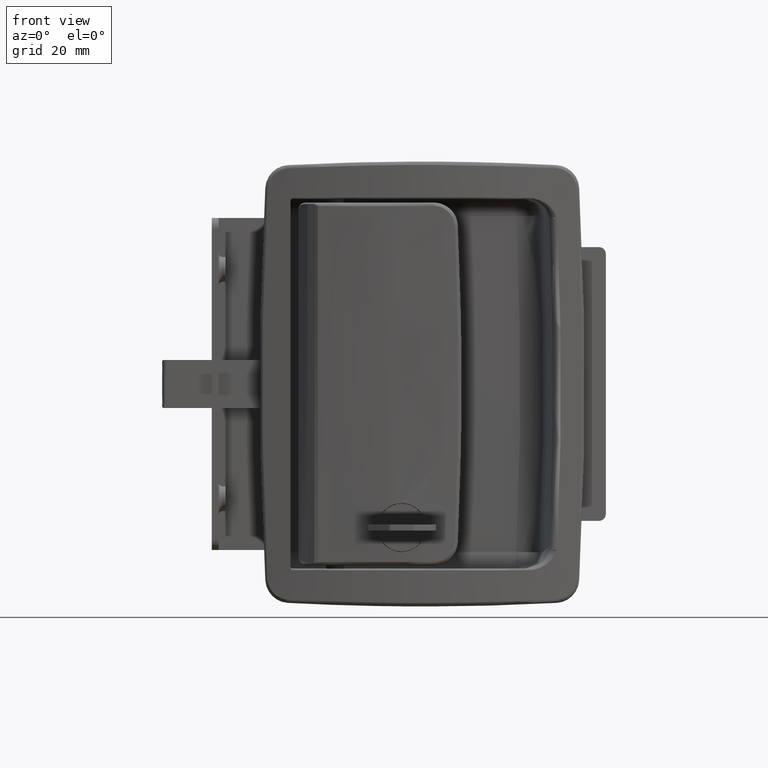
[diagram: clean part render]
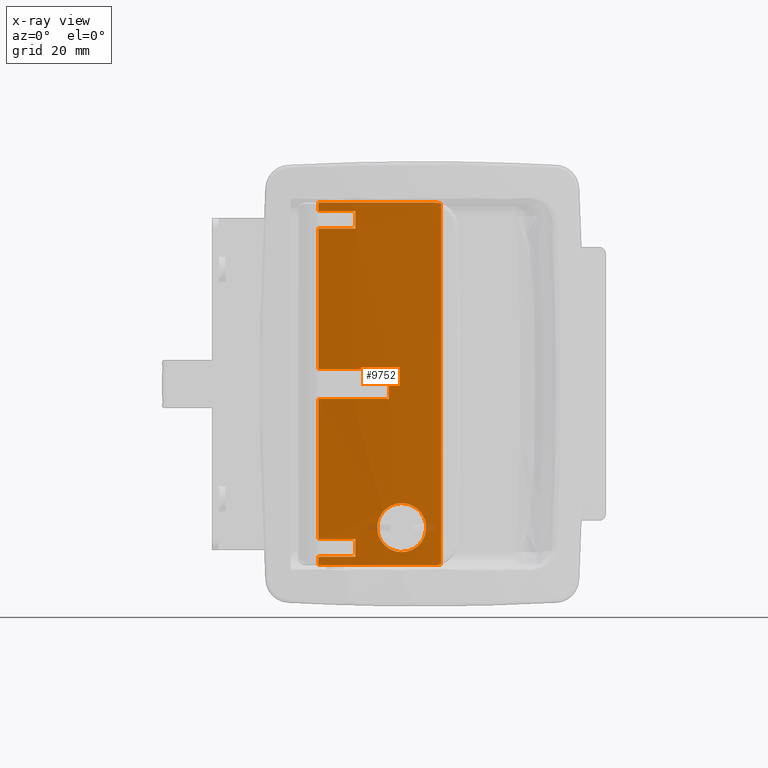
[diagram: x-ray — body ghosted, one internal face saturated and labeled with its STEP entity id]
A machine part, front view, then the same camera in x-ray: the body is ghosted and one INTERNAL B-rep face — a face not visible from any outside direction — is saturated and labeled: STEP entity #9752.
In plain terms, the highlighted face is a freeform B-spline surface patch.
Its self-contained STEP definition (entity closure, byte-faithful):
#5602=CARTESIAN_POINT('',(34.363305564624518,-7.742227874183371,-41.563501074085863));
#5603=VERTEX_POINT('',#5602);
#5609=CARTESIAN_POINT('',(41.496781547425570,-8.104494505288105,-34.850000724450410));
#5610=VERTEX_POINT('',#5609);
#5611=CARTESIAN_POINT('',(41.496781547425570,-8.104494505288105,-34.850000724450410));
#5612=CARTESIAN_POINT('',(41.030293219278178,-8.089647942778354,-34.850210771689653));
#5613=CARTESIAN_POINT('',(40.566688139763009,-8.073160818545130,-34.895633601574900));
#5614=CARTESIAN_POINT('',(39.990856102584623,-8.050582631657575,-35.010096028658552));
#5615=CARTESIAN_POINT('',(39.875558489012150,-8.045955448989009,-35.035982525879867));
#5616=CARTESIAN_POINT('',(39.647117206708742,-8.036580097952816,-35.093251836682569));
#5617=CARTESIAN_POINT('',(39.534043458540062,-8.031835556417176,-35.124596046715062));
#5618=CARTESIAN_POINT('',(39.198196493384003,-8.017446903958390,-35.226601818753977));
#5619=CARTESIAN_POINT('',(38.759382590460959,-7.997848389074263,-35.383833247723537));
#5620=CARTESIAN_POINT('',(38.338230920623552,-7.977594634898024,-35.582816223285512));
#5621=CARTESIAN_POINT('',(38.029068858565161,-7.962229188744741,-35.747903572609438));
#5622=CARTESIAN_POINT('',(37.927133760828617,-7.957078258494235,-35.805579059093560));
#5623=CARTESIAN_POINT('',(37.725539362961868,-7.946731056844914,-35.926314055666573));
#5624=CARTESIAN_POINT('',(37.625628344963417,-7.941521231457459,-35.989552086616392));
#5625=CARTESIAN_POINT('',(37.136619546801462,-7.915645303959328,-36.316281731899601));
#5626=CARTESIAN_POINT('',(36.776647447622331,-7.895385123223160,-36.612106543192120));
#5627=CARTESIAN_POINT('',(36.282170500862939,-7.866374623149135,-37.106039799152313));
#5628=CARTESIAN_POINT('',(36.124979973349987,-7.856935632877714,-37.279110810456089));
#5629=CARTESIAN_POINT('',(35.900980313267922,-7.843231292468315,-37.551731339513132));
#5630=CARTESIAN_POINT('',(35.828169260130217,-7.838731824144082,-37.644953339405383));
#5631=CARTESIAN_POINT('',(35.688066219454349,-7.829997875631098,-37.833765795220550));
#5632=CARTESIAN_POINT('',(35.620586587190019,-7.825752066980921,-37.929568231328233));
#5633=CARTESIAN_POINT('',(35.295827234045923,-7.805156222118368,-38.415443001567802));
#5634=CARTESIAN_POINT('',(35.076103092362239,-7.790694486179654,-38.825907411672851));
#5635=CARTESIAN_POINT('',(34.851727869518427,-7.775676303185949,-39.366307743459572));
#5636=CARTESIAN_POINT('',(34.809389426273050,-7.772826375830888,-39.475766060968724));
#5637=CARTESIAN_POINT('',(34.729883676682611,-7.767450932429752,-39.697492798111099));
#5638=CARTESIAN_POINT('',(34.692729257662833,-7.764926225760157,-39.809791378550642));
#5639=CARTESIAN_POINT('',(34.590276116636161,-7.757938574345715,-40.147142449235787));
#5640=CARTESIAN_POINT('',(34.533494525477579,-7.754029663676185,-40.373893455051572));
#5641=CARTESIAN_POINT('',(34.424787421353699,-7.746516455639039,-40.919327780962838));
#5642=CARTESIAN_POINT('',(34.383061132522272,-7.743608271940401,-41.239649542620661));
#5643=CARTESIAN_POINT('',(34.363305564624518,-7.742227874183371,-41.563501074085863));
#5644=B_SPLINE_CURVE_WITH_KNOTS('',3,(#5611,#5612,#5613,#5614,#5615,#5616,#5617,#5618,#5619,#5620,#5621,#5622,#5623,#5624,#5625,#5626,#5627,#5628,#5629,#5630,#5631,#5632,#5633,#5634,#5635,#5636,#5637,#5638,#5639,#5640,#5641,#5642,#5643),.UNSPECIFIED.,.F.,.U.,(4,2,2,2,1,2,2,2,2,2,2,2,2,2,2,2,4),(0.500000000000017,0.531250000000014,0.539062500000014,0.546875000000013,0.562500000000012,0.578125000000011,0.585937500000010,0.593750000000010,0.625000000000007,0.640625000000006,0.648437500000006,0.656250000000006,0.687500000000006,0.695312500000006,0.703125000000006,0.718750000000007,0.740413241313527),.UNSPECIFIED.);
#5645=EDGE_CURVE('',#5610,#5603,#5644,.T.);
#5647=CARTESIAN_POINT('',(41.500000000106169,-8.104596908769048,-49.150000000084098));
#5648=VERTEX_POINT('',#5647);
#5649=CARTESIAN_POINT('',(41.500000000106169,-8.104596908769048,-49.150000000084098));
#5650=CARTESIAN_POINT('',(41.972285367783542,-8.119619868310009,-49.150000000084098));
#5651=CARTESIAN_POINT('',(42.436736262924207,-8.132619333420191,-49.103664906074911));
#5652=CARTESIAN_POINT('',(43.122130037579467,-8.149353542600007,-48.967456610799232));
#5653=CARTESIAN_POINT('',(43.348700175551350,-8.154470097638825,-48.910853726799559));
#5654=CARTESIAN_POINT('',(43.685646800936681,-8.161482382640624,-48.808760603505760));
#5655=CARTESIAN_POINT('',(43.797673199955021,-8.163713080747446,-48.771788427993933));
#5656=CARTESIAN_POINT('',(44.019850838065693,-8.167941746249177,-48.692292014044021));
#5657=CARTESIAN_POINT('',(44.129508287786727,-8.169930728606621,-48.649956292968142));
#5658=CARTESIAN_POINT('',(44.670782965942607,-8.179288625147487,-48.425601598342311));
#5659=CARTESIAN_POINT('',(45.081562162551471,-8.184903771305413,-48.205915069090551));
#5660=CARTESIAN_POINT('',(45.567467032404572,-8.190130035507087,-47.881485040158132));
#5661=CARTESIAN_POINT('',(45.663257138839462,-8.191085255371727,-47.814085521964223));
#5662=CARTESIAN_POINT('',(45.852010692446044,-8.192827997824622,-47.674178653661102));
#5663=CARTESIAN_POINT('',(45.945216784581461,-8.193617321792717,-47.601467988679282));
#5664=CARTESIAN_POINT('',(46.218568969134751,-8.195737428389544,-47.377098700821278));
#5665=CARTESIAN_POINT('',(46.392013586295107,-8.196819529009748,-47.219686719667713));
#5666=CARTESIAN_POINT('',(46.886795810392726,-8.199292041720582,-46.724683736642142));
#5667=CARTESIAN_POINT('',(47.182823960164690,-8.199914474507629,-46.364541468680692));
#5668=CARTESIAN_POINT('',(47.509549538683679,-8.200011071387181,-45.875776050488788));
#5669=CARTESIAN_POINT('',(47.572868837619858,-8.199995637792668,-45.775795632860017));
#5670=CARTESIAN_POINT('',(47.693920471352307,-8.199910074135639,-45.573754017082543));
#5671=CARTESIAN_POINT('',(47.751727352729752,-8.199840170047409,-45.471613966494068));
#5672=CARTESIAN_POINT('',(47.917140858344823,-8.199571202851917,-45.161897673757402));
#5673=CARTESIAN_POINT('',(48.116377733224212,-8.199056024815837,-44.740168509150159));
#5674=CARTESIAN_POINT('',(48.273621230173063,-8.198426588179109,-44.301152535941803));
#5675=CARTESIAN_POINT('',(48.375588096935083,-8.197971863180703,-43.965318094736737));
#5676=CARTESIAN_POINT('',(48.406911374773003,-8.197823042575891,-43.852275928560530));
#5677=CARTESIAN_POINT('',(48.464130488103542,-8.197539394316920,-43.623957326758820));
#5678=CARTESIAN_POINT('',(48.490057614778763,-8.197404379497234,-43.508455170337207));
#5679=CARTESIAN_POINT('',(48.604671989591843,-8.196789164972055,-42.931458660197237));
#5680=CARTESIAN_POINT('',(48.649940225651463,-8.196496479074945,-42.467390262209399));
#5681=CARTESIAN_POINT('',(48.650029799453549,-8.196495933232832,-41.767677831652151));
#5682=CARTESIAN_POINT('',(48.638676199353810,-8.196566191925653,-41.533834387518120));
#5683=CARTESIAN_POINT('',(48.604045999808108,-8.196770905723176,-41.182132346896822));
#5684=CARTESIAN_POINT('',(48.589538184583581,-8.196855661307813,-41.064710642669482));
#5685=CARTESIAN_POINT('',(48.554961889046091,-8.197052115678341,-40.832168421104733));
#5686=CARTESIAN_POINT('',(48.534866814054944,-8.197163972498283,-40.716717204946789));
#5687=CARTESIAN_POINT('',(48.420587787909099,-8.197776799885478,-40.143493111327828));
#5688=CARTESIAN_POINT('',(48.285386883199763,-8.198450875617622,-39.697701126266239));
#5689=CARTESIAN_POINT('',(48.061324528692182,-8.199170526866318,-39.156543892777570));
#5690=CARTESIAN_POINT('',(48.013734272978773,-8.199307493478258,-39.049123804056620));
#5691=CARTESIAN_POINT('',(47.912887108261792,-8.199555074571006,-38.835938774392012));
#5692=CARTESIAN_POINT('',(47.859725080148479,-8.199665293794160,-38.730414199785400));
#5693=CARTESIAN_POINT('',(47.693498123167998,-8.199933338412766,-38.419740428968701));
#5694=CARTESIAN_POINT('',(47.573212560217328,-8.200030250131242,-38.219405868329737));
#5695=CARTESIAN_POINT('',(47.184625975538466,-8.199914291757512,-37.638264258796113));
#5696=CARTESIAN_POINT('',(46.888866327879342,-8.199305907603693,-37.277124972621387));
#5697=CARTESIAN_POINT('',(46.471466171143071,-8.197215674410483,-36.859867982157581));
#5698=CARTESIAN_POINT('',(46.386031250984750,-8.196732292044120,-36.778604549275592));
#5699=CARTESIAN_POINT('',(46.212047339319987,-8.195625090105736,-36.621070579530802));
#5700=CARTESIAN_POINT('',(46.123384448482931,-8.195000713335901,-36.544685750168412));
#5701=CARTESIAN_POINT('',(45.852456388078437,-8.192894728958992,-36.322573410325369));
#5702=CARTESIAN_POINT('',(45.478070512880912,-8.189466489278065,-36.045169558751162));
#5703=CARTESIAN_POINT('',(45.077591107088637,-8.184565862642213,-35.804971155921727));
#5704=CARTESIAN_POINT('',(44.767238912700719,-8.180241531121769,-35.639071607528557));
#5705=CARTESIAN_POINT('',(44.662060561947577,-8.178690870203758,-35.586123068924678));
#5706=CARTESIAN_POINT('',(44.448536880333002,-8.175358752579795,-35.485203414560182));
#5707=CARTESIAN_POINT('',(44.340972978712550,-8.173589544814625,-35.437597995795429));
#5708=CARTESIAN_POINT('',(43.799228322830167,-8.164208763788558,-35.213542189340920));
#5709=CARTESIAN_POINT('',(43.353384100383018,-8.154995871051302,-35.078608045638859));
#5710=CARTESIAN_POINT('',(42.780711740523863,-8.141018608985640,-34.964666682564939));
#5711=CARTESIAN_POINT('',(42.665401970392161,-8.138099886533697,-34.944639386314442));
#5712=CARTESIAN_POINT('',(42.433208403775559,-8.132006678911562,-34.910190607864898));
#5713=CARTESIAN_POINT('',(42.316077770373788,-8.128825210390756,-34.895746110797909));
#5714=CARTESIAN_POINT('',(41.963996747472187,-8.118931136708726,-34.861174324898712));
#5715=CARTESIAN_POINT('',(41.730026242903961,-8.111917786542827,-34.849895733248779));
#5716=CARTESIAN_POINT('',(41.496781547425570,-8.104494505288105,-34.850000724450410));
#5717=B_SPLINE_CURVE_WITH_KNOTS('',3,(#5649,#5650,#5651,#5652,#5653,#5654,#5655,#5656,#5657,#5658,#5659,#5660,#5661,#5662,#5663,#5664,#5665,#5666,#5667,#5668,#5669,#5670,#5671,#5672,#5673,#5674,#5675,#5676,#5677,#5678,#5679,#5680,#5681,#5682,#5683,#5684,#5685,#5686,#5687,#5688,#5689,#5690,#5691,#5692,#5693,#5694,#5695,#5696,#5697,#5698,#5699,#5700,#5701,#5702,#5703,#5704,#5705,#5706,#5707,#5708,#5709,#5710,#5711,#5712,#5713,#5714,#5715,#5716),.UNSPECIFIED.,.F.,.U.,(4,2,2,2,2,2,2,2,2,2,2,2,1,2,2,2,2,2,2,2,2,2,2,2,2,2,2,1,2,2,2,2,2,2,4),(0.0,0.031250000000003,0.046875000000005,0.054687500000006,0.062500000000006,0.093750000000009,0.101562500000010,0.109375000000011,0.125000000000011,0.156250000000013,0.164062500000014,0.171875000000014,0.187500000000015,0.203125000000016,0.210937500000017,0.218750000000017,0.250000000000018,0.265625000000019,0.273437500000019,0.281250000000019,0.312500000000020,0.320312500000020,0.328125000000021,0.343750000000021,0.375000000000022,0.382812500000022,0.390625000000022,0.406250000000022,0.421875000000021,0.429687500000021,0.437500000000020,0.468750000000019,0.476562500000018,0.484375000000018,0.500000000000017),.UNSPECIFIED.);
#5718=EDGE_CURVE('',#5648,#5610,#5717,.T.);
#5720=CARTESIAN_POINT('',(35.438335990802408,-7.814158619527541,-45.791949545203387));
#5721=VERTEX_POINT('',#5720);
#5722=CARTESIAN_POINT('',(35.438335990802408,-7.814158619527541,-45.791949545203387));
#5723=CARTESIAN_POINT('',(35.475220486050752,-7.816520529493137,-45.850889804578948));
#5724=CARTESIAN_POINT('',(35.512985684934833,-7.818928026505351,-45.909329983408981));
#5725=CARTESIAN_POINT('',(35.616383300940143,-7.825487557031019,-46.064360771128307));
#5726=CARTESIAN_POINT('',(35.683626564665687,-7.829719993939651,-46.160036818753042));
#5727=CARTESIAN_POINT('',(35.823163843290452,-7.838422149559914,-46.348521880705071));
#5728=CARTESIAN_POINT('',(35.895535372734251,-7.842896618920885,-46.441425299792819));
#5729=CARTESIAN_POINT('',(36.119900312536082,-7.856629618242421,-46.715142779082072));
#5730=CARTESIAN_POINT('',(36.277247512813133,-7.866081993062561,-46.888725182091228));
#5731=CARTESIAN_POINT('',(36.771811747927167,-7.895110405189657,-47.383700243780282));
#5732=CARTESIAN_POINT('',(37.131339878070811,-7.915352550684081,-47.679562741827240));
#5733=CARTESIAN_POINT('',(37.618719224049762,-7.941159256719252,-48.005984075473108));
#5734=CARTESIAN_POINT('',(37.718348753322552,-7.946358416679890,-48.069219132529177));
#5735=CARTESIAN_POINT('',(37.920375554021817,-7.956735280543827,-48.190525153381913));
#5736=CARTESIAN_POINT('',(38.022487977906742,-7.961898737102525,-48.248443221593817));
#5737=CARTESIAN_POINT('',(38.332058051811451,-7.977295034348699,-48.414154881464327));
#5738=CARTESIAN_POINT('',(38.753423529519431,-7.997571806352448,-48.613695492330677));
#5739=CARTESIAN_POINT('',(39.191705481064453,-8.017160547230983,-48.771173722087667));
#5740=CARTESIAN_POINT('',(39.526833688573362,-8.031530789756047,-48.873334200764489));
#5741=CARTESIAN_POINT('',(39.639614435948303,-8.036267369421633,-48.904724953439612));
#5742=CARTESIAN_POINT('',(39.867354532860070,-8.045623427552645,-48.962092667632632));
#5743=CARTESIAN_POINT('',(39.982579205682832,-8.050253180248545,-48.988118758606532));
#5744=CARTESIAN_POINT('',(40.560444918019073,-8.072935222988095,-49.103659842725683));
#5745=CARTESIAN_POINT('',(41.027715169180048,-8.089573949228081,-49.149999664187114));
#5746=CARTESIAN_POINT('',(41.500000000106169,-8.104596908769048,-49.150000000084098));
#5747=B_SPLINE_CURVE_WITH_KNOTS('',3,(#5722,#5723,#5724,#5725,#5726,#5727,#5728,#5729,#5730,#5731,#5732,#5733,#5734,#5735,#5736,#5737,#5738,#5739,#5740,#5741,#5742,#5743,#5744,#5745,#5746),.UNSPECIFIED.,.F.,.U.,(4,2,2,2,2,2,2,2,1,2,2,2,4),(0.839087637835899,0.843750000000006,0.851562500000006,0.859375000000006,0.875000000000005,0.906250000000004,0.914062500000004,0.921875000000004,0.937500000000003,0.953125000000003,0.960937500000002,0.968750000000001,1.0),.UNSPECIFIED.);
#5748=EDGE_CURVE('',#5721,#5648,#5747,.T.);
#5796=CARTESIAN_POINT('',(34.363305564624518,-7.742227874183371,-41.563501074085863));
#5797=CARTESIAN_POINT('',(34.354562015586090,-7.741616998830490,-41.706816698591709));
#5798=CARTESIAN_POINT('',(34.350121165870000,-7.741305321849355,-41.850823583286207));
#5799=CARTESIAN_POINT('',(34.349955646958641,-7.741293848520028,-42.113453773048398));
#5800=CARTESIAN_POINT('',(34.352813415732818,-7.741493568789938,-42.231572170096442));
#5801=CARTESIAN_POINT('',(34.364273580723513,-7.742293613274130,-42.466183550868273));
#5802=CARTESIAN_POINT('',(34.372873604739851,-7.742893769142932,-42.582969203195177));
#5803=CARTESIAN_POINT('',(34.407149645818407,-7.745281779806421,-42.931790344500207));
#5804=CARTESIAN_POINT('',(34.475413696310682,-7.750031279508947,-43.392796906542593));
#5805=CARTESIAN_POINT('',(34.588375399779707,-7.757808609026746,-43.845705285864348));
#5806=CARTESIAN_POINT('',(34.690184115239610,-7.764753623892523,-44.182291284821389));
#5807=CARTESIAN_POINT('',(34.726973411868627,-7.767254110373229,-44.293969806016307));
#5808=CARTESIAN_POINT('',(34.806377773399859,-7.772623983908577,-44.516271672640563));
#5809=CARTESIAN_POINT('',(34.848757856343383,-7.775477411934666,-44.626217105040809));
#5810=CARTESIAN_POINT('',(35.046303322172207,-7.788702992331136,-45.103462159169787));
#5811=CARTESIAN_POINT('',(35.227999482916687,-7.800689565739244,-45.455837104480317));
#5812=CARTESIAN_POINT('',(35.438335990802408,-7.814158619527541,-45.791949545203387));
#5813=B_SPLINE_CURVE_WITH_KNOTS('',3,(#5796,#5797,#5798,#5799,#5800,#5801,#5802,#5803,#5804,#5805,#5806,#5807,#5808,#5809,#5810,#5811,#5812),.UNSPECIFIED.,.F.,.U.,(4,2,2,2,1,2,2,2,4),(0.740413241313527,0.750000000000007,0.757812500000007,0.765625000000007,0.781250000000007,0.796875000000006,0.804687500000006,0.812500000000006,0.839087637835899),.UNSPECIFIED.);
#5814=EDGE_CURVE('',#5603,#5721,#5813,.T.);
#7942=CARTESIAN_POINT('',(50.893822555669999,-8.169481475120840,-52.999999999724700));
#7943=VERTEX_POINT('',#7942);
#7949=CARTESIAN_POINT('',(53.029306959477999,-8.118981389351818,-52.666311300668603));
#7950=VERTEX_POINT('',#7949);
#7951=CARTESIAN_POINT('',(50.893822555669999,-8.169481475120840,-52.999999999724700));
#7952=CARTESIAN_POINT('',(51.617285696081808,-8.156371900067077,-53.000197565848907));
#7953=CARTESIAN_POINT('',(52.340566892598048,-8.139270519850081,-52.887258342511053));
#7954=CARTESIAN_POINT('',(53.029306959477999,-8.118981389351818,-52.666311300668603));
#7955=B_SPLINE_CURVE_WITH_KNOTS('',3,(#7951,#7952,#7953,#7954),.UNSPECIFIED.,.F.,.U.,(4,4),(0.000000011557547,2.170712353050040),.UNSPECIFIED.);
#7956=EDGE_CURVE('',#7943,#7950,#7955,.T.);
#8049=CARTESIAN_POINT('',(17.135004454595400,-5.741132670063000,-52.999999999724700));
#8050=VERTEX_POINT('',#8049);
#8058=CARTESIAN_POINT('',(50.893822555669999,-8.169481475120840,-52.999999999724700));
#8059=CARTESIAN_POINT('',(39.598436232229353,-8.373110391016825,-52.999999999724757));
#8060=CARTESIAN_POINT('',(28.284928865014191,-7.559695992227859,-52.999999999724871));
#8061=CARTESIAN_POINT('',(17.135004454595400,-5.741132670063000,-52.999999999724700));
#8062=B_SPLINE_CURVE_WITH_KNOTS('',3,(#8058,#8059,#8060,#8061),.UNSPECIFIED.,.F.,.U.,(4,4),(9.469758E-010,33.891579768049240),.UNSPECIFIED.);
#8063=EDGE_CURVE('',#7943,#8050,#8062,.T.);
#8200=CARTESIAN_POINT('',(50.893822555685603,-8.169481475120561,52.999999999683197));
#8201=VERTEX_POINT('',#8200);
#8207=CARTESIAN_POINT('',(17.135004454595400,-5.741132670063000,52.999999999683197));
#8208=VERTEX_POINT('',#8207);
#8209=CARTESIAN_POINT('',(50.893822555685603,-8.169481475120561,52.999999999683197));
#8210=CARTESIAN_POINT('',(39.598409292192201,-8.373481141787000,52.999999999683340));
#8211=CARTESIAN_POINT('',(28.284955916952359,-7.559360091471564,52.999999999683183));
#8212=CARTESIAN_POINT('',(17.135004454595400,-5.741132670063000,52.999999999683197));
#8213=B_SPLINE_CURVE_WITH_KNOTS('',3,(#8209,#8210,#8211,#8212),.UNSPECIFIED.,.F.,.U.,(4,4),(9.464785E-010,33.891579768064872),.UNSPECIFIED.);
#8214=EDGE_CURVE('',#8201,#8208,#8213,.T.);
#8304=CARTESIAN_POINT('',(53.029306959477999,-8.118981389351818,52.666311300506997));
#8305=VERTEX_POINT('',#8304);
#8316=CARTESIAN_POINT('',(53.029306959477999,-8.118981389351818,52.666311300506997));
#8317=CARTESIAN_POINT('',(52.340562121318868,-8.139323636908982,52.887187221424433));
#8318=CARTESIAN_POINT('',(51.617299207064100,-8.156430343089197,53.000285518581777));
#8319=CARTESIAN_POINT('',(50.893822555685603,-8.169481475120561,52.999999999683197));
#8320=B_SPLINE_CURVE_WITH_KNOTS('',3,(#8316,#8317,#8318,#8319),.UNSPECIFIED.,.F.,.U.,(4,4),(0.000000011561649,2.170713791909563),.UNSPECIFIED.);
#8321=EDGE_CURVE('',#8305,#8201,#8320,.T.);
#8331=CARTESIAN_POINT('',(17.135004454595400,-5.741132670062910,-50.500000000000000));
#8332=VERTEX_POINT('',#8331);
#8333=CARTESIAN_POINT('',(27.999999999988852,-7.189856117119351,-50.500000000000000));
#8334=VERTEX_POINT('',#8333);
#8335=CARTESIAN_POINT('',(17.135004454595400,-5.741132670062910,-50.500000000000000));
#8336=CARTESIAN_POINT('',(20.741625652111232,-6.329104808307127,-50.499999999999943));
#8337=CARTESIAN_POINT('',(24.365325958119140,-6.812279381227325,-50.500000000000007));
#8338=CARTESIAN_POINT('',(27.999999999988852,-7.189856117119351,-50.500000000000000));
#8339=B_SPLINE_CURVE_WITH_KNOTS('',3,(#8335,#8336,#8337,#8338),.UNSPECIFIED.,.F.,.U.,(4,4),(7.183409E-011,10.962702711517130),.UNSPECIFIED.);
#8340=EDGE_CURVE('',#8332,#8334,#8339,.T.);
#8417=CARTESIAN_POINT('',(17.135004454595400,-5.741132670062910,-45.400000000000013));
#8418=VERTEX_POINT('',#8417);
#8426=CARTESIAN_POINT('',(27.999999999988852,-7.189856117119351,-45.400000000000013));
#8427=VERTEX_POINT('',#8426);
#8428=CARTESIAN_POINT('',(17.135004454595400,-5.741132670062910,-45.400000000000013));
#8429=CARTESIAN_POINT('',(20.741625652111232,-6.329104808307129,-45.399999999999871));
#8430=CARTESIAN_POINT('',(24.365325958119119,-6.812279381227321,-45.400000000000112));
#8431=CARTESIAN_POINT('',(27.999999999988852,-7.189856117119351,-45.400000000000013));
#8432=B_SPLINE_CURVE_WITH_KNOTS('',3,(#8428,#8429,#8430,#8431),.UNSPECIFIED.,.F.,.U.,(4,4),(7.183409E-011,10.962702711517130),.UNSPECIFIED.);
#8433=EDGE_CURVE('',#8418,#8427,#8432,.T.);
#8552=CARTESIAN_POINT('',(27.999999999988852,-7.189856117119351,-45.400000000000013));
#8553=CARTESIAN_POINT('',(27.999999999988852,-7.189856117119351,-50.500000000000000));
#8554=QUASI_UNIFORM_CURVE('',1,(#8552,#8553),.UNSPECIFIED.,.F.,.U.);
#8555=EDGE_CURVE('',#8427,#8334,#8554,.T.);
#8565=CARTESIAN_POINT('',(27.999999999988852,-7.189856117119351,50.500000000000000));
#8566=VERTEX_POINT('',#8565);
#8567=CARTESIAN_POINT('',(17.135004454595400,-5.741132670062910,50.500000000000000));
#8568=VERTEX_POINT('',#8567);
#8569=CARTESIAN_POINT('',(27.999999999988852,-7.189856117119351,50.500000000000000));
#8570=CARTESIAN_POINT('',(24.365323801645609,-6.812283628435539,50.499999999999957));
#8571=CARTESIAN_POINT('',(20.741625916384539,-6.329100278493796,50.500000000000057));
#8572=CARTESIAN_POINT('',(17.135004454595400,-5.741132670062910,50.500000000000000));
#8573=B_SPLINE_CURVE_WITH_KNOTS('',3,(#8569,#8570,#8571,#8572),.UNSPECIFIED.,.F.,.U.,(4,4),(7.205792E-011,10.962702711517130),.UNSPECIFIED.);
#8574=EDGE_CURVE('',#8566,#8568,#8573,.T.);
#8649=CARTESIAN_POINT('',(27.999999999988852,-7.189856117119351,45.400000000000013));
#8650=VERTEX_POINT('',#8649);
#8658=CARTESIAN_POINT('',(17.135004454595400,-5.741132670062910,45.400000000000013));
#8659=VERTEX_POINT('',#8658);
#8660=CARTESIAN_POINT('',(27.999999999988852,-7.189856117119351,45.400000000000013));
#8661=CARTESIAN_POINT('',(24.365323801645609,-6.812283628435522,45.399999999999999));
#8662=CARTESIAN_POINT('',(20.741625916384539,-6.329100278493812,45.400000000000027));
#8663=CARTESIAN_POINT('',(17.135004454595400,-5.741132670062910,45.400000000000013));
#8664=B_SPLINE_CURVE_WITH_KNOTS('',3,(#8660,#8661,#8662,#8663),.UNSPECIFIED.,.F.,.U.,(4,4),(7.205792E-011,10.962702711517130),.UNSPECIFIED.);
#8665=EDGE_CURVE('',#8650,#8659,#8664,.T.);
#8784=CARTESIAN_POINT('',(27.999999999988852,-7.189856117119351,45.400000000000013));
#8785=CARTESIAN_POINT('',(27.999999999988852,-7.189856117119351,50.500000000000000));
#8786=QUASI_UNIFORM_CURVE('',1,(#8784,#8785),.UNSPECIFIED.,.F.,.U.);
#8787=EDGE_CURVE('',#8650,#8566,#8786,.T.);
#8808=CARTESIAN_POINT('',(37.794290015901502,-7.950257626811140,-4.400000000000000));
#8809=VERTEX_POINT('',#8808);
#8822=CARTESIAN_POINT('',(17.135004454595400,-5.741132670063000,-4.400000000000000));
#8823=VERTEX_POINT('',#8822);
#8824=CARTESIAN_POINT('',(37.794290015901502,-7.950257626811140,-4.400000000000000));
#8825=CARTESIAN_POINT('',(30.874257302080618,-7.594016060613924,-4.400000000000012));
#8826=CARTESIAN_POINT('',(23.973905275052271,-6.856101081454452,-4.400000000000003));
#8827=CARTESIAN_POINT('',(17.135004454595400,-5.741132670063000,-4.400000000000000));
#8828=B_SPLINE_CURVE_WITH_KNOTS('',3,(#8824,#8825,#8826,#8827),.UNSPECIFIED.,.F.,.U.,(4,4),(3.502834E-010,20.787579823930699),.UNSPECIFIED.);
#8829=EDGE_CURVE('',#8809,#8823,#8828,.T.);
#9061=CARTESIAN_POINT('',(17.135004454595400,-5.741132670063000,4.400000000000000));
#9062=VERTEX_POINT('',#9061);
#9070=CARTESIAN_POINT('',(37.794290015901502,-7.950257626811150,4.400000000000000));
#9071=VERTEX_POINT('',#9070);
#9072=CARTESIAN_POINT('',(37.794290015901502,-7.950257626811150,4.400000000000000));
#9073=CARTESIAN_POINT('',(30.874263222426350,-7.593966171561602,4.399999999999973));
#9074=CARTESIAN_POINT('',(23.973898862589010,-6.856150778451823,4.400000000000073));
#9075=CARTESIAN_POINT('',(17.135004454595400,-5.741132670063000,4.400000000000000));
#9076=B_SPLINE_CURVE_WITH_KNOTS('',3,(#9072,#9073,#9074,#9075),.UNSPECIFIED.,.F.,.U.,(4,4),(3.499352E-010,20.787579823930699),.UNSPECIFIED.);
#9077=EDGE_CURVE('',#9071,#9062,#9076,.T.);
#9237=CARTESIAN_POINT('',(37.794290015901502,-7.950257626811150,4.400000000000000));
#9238=CARTESIAN_POINT('',(37.794290015901502,-7.950257626811140,-4.400000000000000));
#9239=QUASI_UNIFORM_CURVE('',1,(#9237,#9238),.UNSPECIFIED.,.F.,.U.);
#9240=EDGE_CURVE('',#9071,#8809,#9239,.T.);
#9285=CARTESIAN_POINT('',(53.029306959477999,-8.118981389351818,-52.666311300668603));
#9286=CARTESIAN_POINT('',(53.029306959477999,-8.118981389351818,52.666311300506997));
#9287=QUASI_UNIFORM_CURVE('',1,(#9285,#9286),.UNSPECIFIED.,.F.,.U.);
#9288=EDGE_CURVE('',#7950,#8305,#9287,.T.);
#9548=CARTESIAN_POINT('',(17.135004454595400,-5.741132670063000,4.400000000000000));
#9549=CARTESIAN_POINT('',(17.135004454595400,-5.741132670062910,45.400000000000013));
#9550=QUASI_UNIFORM_CURVE('',1,(#9548,#9549),.UNSPECIFIED.,.F.,.U.);
#9551=EDGE_CURVE('',#9062,#8659,#9550,.T.);
#9625=CARTESIAN_POINT('',(17.135004454595400,-5.741132670062910,-45.400000000000013));
#9626=CARTESIAN_POINT('',(17.135004454595400,-5.741132670063000,-4.400000000000000));
#9627=QUASI_UNIFORM_CURVE('',1,(#9625,#9626),.UNSPECIFIED.,.F.,.U.);
#9628=EDGE_CURVE('',#8418,#8823,#9627,.T.);
#9647=CARTESIAN_POINT('',(17.135004454595400,-5.741132670062910,50.500000000000000));
#9648=CARTESIAN_POINT('',(17.135004454595400,-5.741132670063000,52.999999999683197));
#9649=QUASI_UNIFORM_CURVE('',1,(#9647,#9648),.UNSPECIFIED.,.F.,.U.);
#9650=EDGE_CURVE('',#8568,#8208,#9649,.T.);
#9674=CARTESIAN_POINT('',(17.135004454595400,-5.741132670063000,-52.999999999724700));
#9675=CARTESIAN_POINT('',(17.135004454595400,-5.741132670062910,-50.500000000000000));
#9676=QUASI_UNIFORM_CURVE('',1,(#9674,#9675),.UNSPECIFIED.,.F.,.U.);
#9677=EDGE_CURVE('',#8050,#8332,#9676,.T.);
#9712=CARTESIAN_POINT('',(15.365658085683886,-5.444047769658248,55.649999999668395));
#9713=CARTESIAN_POINT('',(15.365658085683886,-5.444047769658248,-55.716249999709525));
#9714=CARTESIAN_POINT('',(34.958641399348139,-8.829674245078119,55.649999999668388));
#9715=CARTESIAN_POINT('',(34.958641399348139,-8.829674245078119,-55.716249999709511));
#9716=CARTESIAN_POINT('',(54.826996571869770,-8.057712782877426,55.649999999668395));
#9717=CARTESIAN_POINT('',(54.826996571869770,-8.057712782877426,-55.716249999709518));
#9725=(BOUNDED_SURFACE()B_SPLINE_SURFACE(1,2,((#9712,#9714,#9716),(#9713,#9715,#9717)),.UNSPECIFIED.,.F.,.F.,.U.)B_SPLINE_SURFACE_WITH_KNOTS((2,2),(3,3),(0.0,111.366249999377900),(0.0,39.656926239327660),.UNSPECIFIED.)GEOMETRIC_REPRESENTATION_ITEM()RATIONAL_B_SPLINE_SURFACE(((0.998760563391162,0.991926579972033,0.996074814754606),(0.998760563391162,0.991926579972033,0.996074814754606)))REPRESENTATION_ITEM('')SURFACE());
#9726=ORIENTED_EDGE('',*,*,#8321,.F.);
#9727=ORIENTED_EDGE('',*,*,#9288,.F.);
#9728=ORIENTED_EDGE('',*,*,#7956,.F.);
#9729=ORIENTED_EDGE('',*,*,#8063,.T.);
#9730=ORIENTED_EDGE('',*,*,#9677,.T.);
#9731=ORIENTED_EDGE('',*,*,#8340,.T.);
#9732=ORIENTED_EDGE('',*,*,#8555,.F.);
#9733=ORIENTED_EDGE('',*,*,#8433,.F.);
#9734=ORIENTED_EDGE('',*,*,#9628,.T.);
#9735=ORIENTED_EDGE('',*,*,#8829,.F.);
#9736=ORIENTED_EDGE('',*,*,#9240,.F.);
#9737=ORIENTED_EDGE('',*,*,#9077,.T.);
#9738=ORIENTED_EDGE('',*,*,#9551,.T.);
#9739=ORIENTED_EDGE('',*,*,#8665,.F.);
#9740=ORIENTED_EDGE('',*,*,#8787,.T.);
#9741=ORIENTED_EDGE('',*,*,#8574,.T.);
#9742=ORIENTED_EDGE('',*,*,#9650,.T.);
#9743=ORIENTED_EDGE('',*,*,#8214,.F.);
#9744=EDGE_LOOP('',(#9726,#9727,#9728,#9729,#9730,#9731,#9732,#9733,#9734,#9735,#9736,#9737,#9738,#9739,#9740,#9741,#9742,#9743));
#9745=FACE_OUTER_BOUND('',#9744,.T.);
#9746=ORIENTED_EDGE('',*,*,#5718,.T.);
#9747=ORIENTED_EDGE('',*,*,#5645,.T.);
#9748=ORIENTED_EDGE('',*,*,#5814,.T.);
#9749=ORIENTED_EDGE('',*,*,#5748,.T.);
#9750=EDGE_LOOP('',(#9746,#9747,#9748,#9749));
#9751=FACE_BOUND('',#9750,.T.);
#9752=ADVANCED_FACE('',(#9745,#9751),#9725,.F.);